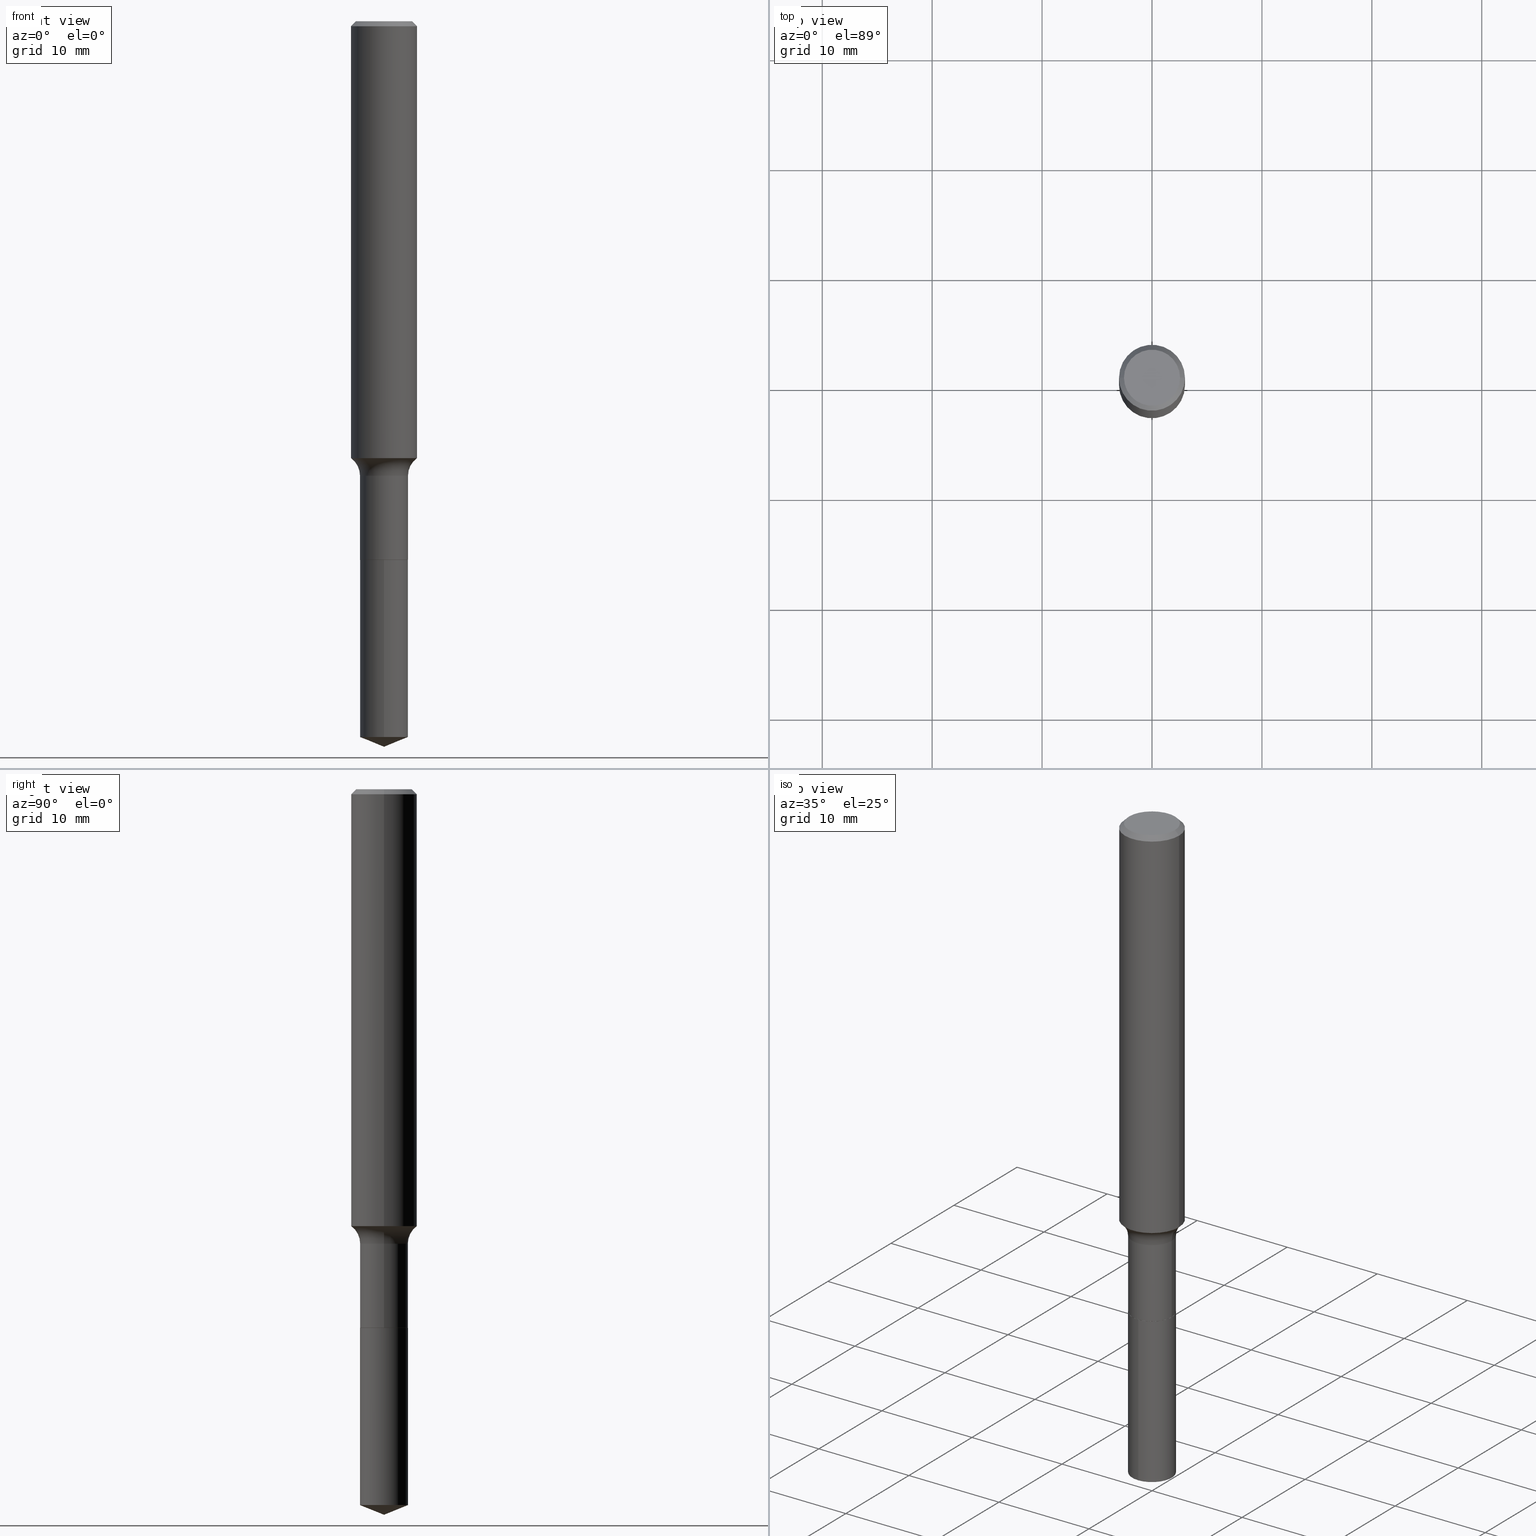
[diagram: canonical four-view strip — front | top / right | iso, engineering-drawing reading convention]
A machine part, canonical four-view strip (front | top / right | iso — engineering-drawing reading convention). The complete STEP part file that produces these views, byte-faithful:
ISO-10303-21;
HEADER;
FILE_DESCRIPTION (( 'STEP AP203' ),
    '1' );
FILE_NAME ('56805.STEP',
    '2024-04-19T13:59:39',
    ( '' ),
    ( '' ),
    'SwSTEP 2.0',
    'SolidWorks 2023',
    '' );
FILE_SCHEMA (( 'CONFIG_CONTROL_DESIGN' ));
ENDSEC;

DATA;
#1 = DIRECTION ( 'NONE',  ( -6.982962677686266711E-15, -1.000000000000000000, 6.356830700789444137E-15 ) ) ;
#2 = DIRECTION ( 'NONE',  ( 1.000000000000000000, -6.982962677686266711E-15, 0.000000000000000000 ) ) ;
#3 = CARTESIAN_POINT ( 'NONE',  ( -8.992195157677283514E-28, 1.283905539975511333E-13, 36.77167874015748339 ) ) ;
#4 = CARTESIAN_POINT ( 'NONE',  ( -0.1180999999999999966, 7.628363003171413738E-16, -0.01771500000000010913 ) ) ;
#5 = DIRECTION ( 'NONE',  ( 1.000000000000000000, -6.982962677686266711E-15, 4.879445411049954809E-29 ) ) ;
#6 = CONICAL_SURFACE ( 'NONE', #223, 0.08544999999999998430, 0.7853981633975507526 ) ;
#7 = LINE ( 'NONE', #115, #301 ) ;
#8 = EDGE_CURVE ( 'NONE', #106, #251, #409, .T. ) ;
#9 = DIRECTION ( 'NONE',  ( -0.7071067811865459074, 2.468850131082239706E-15, -0.7071067811865492381 ) ) ;
#10 = SECURITY_CLASSIFICATION_LEVEL ( 'unclassified' ) ;
#11 = CARTESIAN_POINT ( 'NONE',  ( 0.08594999999999998475, -7.333856552240024427E-15, -1.928600000000000092 ) ) ;
#12 = EDGE_CURVE ( 'NONE', #291, #56, #128, .T. ) ;
#13 = PERSON_AND_ORGANIZATION_ROLE ( 'classification_officer' ) ;
#14 = CARTESIAN_POINT ( 'NONE',  ( 4.717553874011746679E-29, -6.735416650762311704E-15, -1.929099999999999815 ) ) ;
#15 = ORIENTED_EDGE ( 'NONE', *, *, #261, .F. ) ;
#16 = DIMENSIONAL_EXPONENTS ( 1.000000000000000000, 0.000000000000000000, 0.000000000000000000, 0.000000000000000000, 0.000000000000000000, 0.000000000000000000, 0.000000000000000000 ) ;
#17 = EDGE_LOOP ( 'NONE', ( #358, #26, #220, #400 ) ) ;
#18 = ORIENTED_EDGE ( 'NONE', *, *, #471, .F. ) ;
#19 = EDGE_CURVE ( 'NONE', #136, #291, #482, .T. ) ;
#20 = AXIS2_PLACEMENT_3D ( 'NONE', #428, #204, #166 ) ;
#21 = APPROVAL_ROLE ( '' ) ;
#22 = EDGE_LOOP ( 'NONE', ( #427, #18, #288, #167 ) ) ;
#23 = PERSON_AND_ORGANIZATION_ROLE ( 'creator' ) ;
#24 = DIRECTION ( 'NONE',  ( 6.588037525764799179E-15, 0.9271838545667900888, 0.3746065934159054645 ) ) ;
#25 = EDGE_CURVE ( 'NONE', #472, #336, #443, .T. ) ;
#26 = ORIENTED_EDGE ( 'NONE', *, *, #221, .T. ) ;
#27 = DIRECTION ( 'NONE',  ( -6.474490251793184940E-15, -0.9271838545667873133, 0.3746065934159118482 ) ) ;
#28 = CIRCLE ( 'NONE', #20, 0.08594999999999998475 ) ;
#29 = CC_DESIGN_APPROVAL ( #164, ( #469 ) ) ;
#30 = VERTEX_POINT ( 'NONE', #181 ) ;
#31 =( LENGTH_UNIT ( ) NAMED_UNIT ( * ) SI_UNIT ( $, .METRE. ) );
#32 = CYLINDRICAL_SURFACE ( 'NONE', #325, 0.1181000000000000799 ) ;
#33 = FACE_OUTER_BOUND ( 'NONE', #266, .T. ) ;
#34 = DIRECTION ( 'NONE',  ( -6.982962677686266711E-15, -1.000000000000000000, 3.178415350394722068E-15 ) ) ;
#35 = DIRECTION ( 'NONE',  ( -2.445468806185136597E-29, 3.491481338843145583E-15, 1.000000000000000000 ) ) ;
#36 = AXIS2_PLACEMENT_3D ( 'NONE', #374, #411, #34 ) ;
#37 = AXIS2_PLACEMENT_3D ( 'NONE', #339, #224, #344 ) ;
#38 = CARTESIAN_POINT ( 'NONE',  ( 4.332147990156996744E-31, -6.185159191760670395E-17, -0.01771500000000010913 ) ) ;
#39 = CARTESIAN_POINT ( 'NONE',  ( 4.717553874011746679E-29, -6.735416650762311704E-15, -1.929099999999999815 ) ) ;
#40 = DIRECTION ( 'NONE',  ( -2.445468806185136597E-29, 3.491481338843145583E-15, 1.000000000000000000 ) ) ;
#41 = EDGE_CURVE ( 'NONE', #106, #300, #158, .T. ) ;
#42 = CARTESIAN_POINT ( 'NONE',  ( 0.1003850000000000159, -7.803837484803599345E-16, -3.975387207051662201E-17 ) ) ;
#43 = CONICAL_SURFACE ( 'NONE', #112, 0.08544999999999998430, 0.7853981633975507526 ) ;
#44 = CARTESIAN_POINT ( 'NONE',  ( -0.1181000000000000799, 8.391509709326788873E-16, -5.809262341591047988E-30 ) ) ;
#45 = PERSON_AND_ORGANIZATION ( #219, #51 ) ;
#46 = CARTESIAN_POINT ( 'NONE',  ( -6.001856421470872890E-16, -0.08595000000000671547, -1.929099999999999593 ) ) ;
#47 = EDGE_CURVE ( 'NONE', #173, #322, #481, .T. ) ;
#48 = PERSON_AND_ORGANIZATION ( #219, #51 ) ;
#49 = CARTESIAN_POINT ( 'NONE',  ( 0.08544999999999998430, -7.332110811570602134E-15, -1.929099999999999815 ) ) ;
#50 = ORIENTED_EDGE ( 'NONE', *, *, #163, .T. ) ;
#51 = ORGANIZATION ( 'UNSPECIFIED', 'UNSPECIFIED', '' ) ;
#52 = ORIENTED_EDGE ( 'NONE', *, *, #295, .F. ) ;
#53 = CC_DESIGN_SECURITY_CLASSIFICATION ( #469, ( #210 ) ) ;
#54 = EDGE_LOOP ( 'NONE', ( #282, #486, #123, #52 ) ) ;
#55 = ADVANCED_FACE ( 'NONE', ( #100 ), #43, .T. ) ;
#56 = VERTEX_POINT ( 'NONE', #225 ) ;
#57 = DATE_AND_TIME ( #79, #476 ) ;
#58 = ORIENTED_EDGE ( 'NONE', *, *, #281, .F. ) ;
#59 = AXIS2_PLACEMENT_3D ( 'NONE', #211, #277, #426 ) ;
#60 = APPROVAL_ROLE ( '' ) ;
#61 = DIRECTION ( 'NONE',  ( 1.000000000000000000, -6.982962677686268288E-15, 0.000000000000000000 ) ) ;
#62 = ADVANCED_FACE ( 'NONE', ( #373 ), #32, .T. ) ;
#63 = APPLICATION_CONTEXT ( 'configuration controlled 3d designs of mechanical parts and assemblies' ) ;
#64 = VERTEX_POINT ( 'NONE', #415 ) ;
#65 = ORIENTED_EDGE ( 'NONE', *, *, #152, .F. ) ;
#66 = CIRCLE ( 'NONE', #422, 0.1003850000000000159 ) ;
#67 = DIRECTION ( 'NONE',  ( 0.7071067811865459074, -7.319954787623251312E-15, -0.7071067811865492381 ) ) ;
#68 = ADVANCED_FACE ( 'NONE', ( #268 ), #161, .T. ) ;
#69 = CARTESIAN_POINT ( 'NONE',  ( 0.1639499999999999291, -6.827940906241650604E-15, -1.627699999999999703 ) ) ;
#70 = DIRECTION ( 'NONE',  ( -2.445468806185136597E-29, 3.491481338843145583E-15, 1.000000000000000000 ) ) ;
#71 = DIRECTION ( 'NONE',  ( -6.982962677686266711E-15, -1.000000000000000000, 3.178415350394722068E-15 ) ) ;
#72 = DIRECTION ( 'NONE',  ( 1.000000000000000000, -6.982962677686264344E-15, 4.883557194083111780E-29 ) ) ;
#73 = CIRCLE ( 'NONE', #264, 0.08544999999999998430 ) ;
#74 = DIRECTION ( 'NONE',  ( -6.982962677686266711E-15, -1.000000000000000000, 3.178415350394722068E-15 ) ) ;
#75 = FACE_OUTER_BOUND ( 'NONE', #442, .T. ) ;
#76 = EDGE_CURVE ( 'NONE', #284, #56, #421, .T. ) ;
#77 = CARTESIAN_POINT ( 'NONE',  ( 3.826177248422579453E-29, -5.462767068705062690E-15, -1.564598672755638020 ) ) ;
#78 = FACE_OUTER_BOUND ( 'NONE', #176, .T. ) ;
#79 = CALENDAR_DATE ( 2024, 19, 4 ) ;
#80 = DIRECTION ( 'NONE',  ( 7.105427357601001859E-15, 1.000000000000000000, -3.491481338843145583E-15 ) ) ;
#81 = APPROVAL_STATUS ( 'not_yet_approved' ) ;
#82 = DIRECTION ( 'NONE',  ( -2.445468806185136877E-29, 3.491481338843145188E-15, 1.000000000000000000 ) ) ;
#83 = COORDINATED_UNIVERSAL_TIME_OFFSET ( 5, 0, .BEHIND. ) ;
#84 = DIRECTION ( 'NONE',  ( 1.000000000000000000, -6.982962677686266711E-15, 0.000000000000000000 ) ) ;
#85 = ORIENTED_EDGE ( 'NONE', *, *, #25, .F. ) ;
#86 = LINE ( 'NONE', #46, #169 ) ;
#87 = APPLICATION_CONTEXT ( 'configuration controlled 3d designs of mechanical parts and assemblies' ) ;
#88 = EDGE_LOOP ( 'NONE', ( #480, #321, #395, #327 ) ) ;
#89 = AXIS2_PLACEMENT_3D ( 'NONE', #265, #457, #74 ) ;
#90 = APPROVAL_PERSON_ORGANIZATION ( #92, #164, #21 ) ;
#91 = EDGE_CURVE ( 'NONE', #247, #245, #431, .T. ) ;
#92 = PERSON_AND_ORGANIZATION ( #219, #51 ) ;
#93 = EDGE_LOOP ( 'NONE', ( #85, #178, #438 ) ) ;
#94 = FACE_OUTER_BOUND ( 'NONE', #179, .T. ) ;
#95 = PERSON_AND_ORGANIZATION ( #219, #51 ) ;
#96 = VECTOR ( 'NONE', #82, 39.37007874015748143 ) ;
#97 = ADVANCED_FACE ( 'NONE', ( #75 ), #215, .T. ) ;
#98 = EDGE_LOOP ( 'NONE', ( #207, #468, #15 ) ) ;
#99 = CIRCLE ( 'NONE', #392, 0.1180999999999999966 ) ;
#100 = FACE_OUTER_BOUND ( 'NONE', #54, .T. ) ;
#101 = ORIENTED_EDGE ( 'NONE', *, *, #261, .T. ) ;
#102 = CARTESIAN_POINT ( 'NONE',  ( 4.717553874011746679E-29, -6.735416650762311704E-15, -1.929099999999999815 ) ) ;
#103 = AXIS2_PLACEMENT_3D ( 'NONE', #303, #305, #71 ) ;
#104 = CC_DESIGN_PERSON_AND_ORGANIZATION_ASSIGNMENT ( #45, #23, ( #357 ) ) ;
#105 = FACE_OUTER_BOUND ( 'NONE', #188, .T. ) ;
#106 = VERTEX_POINT ( 'NONE', #42 ) ;
#107 = FACE_OUTER_BOUND ( 'NONE', #22, .T. ) ;
#108 = DIRECTION ( 'NONE',  ( 1.000000000000000000, -6.982962677686261977E-15, 0.000000000000000000 ) ) ;
#109 = DIRECTION ( 'NONE',  ( -2.445416049279205825E-29, 3.491556889735175103E-15, 1.000000000000000000 ) ) ;
#110 = CARTESIAN_POINT ( 'NONE',  ( 4.717553874011746679E-29, -6.735416650762311704E-15, -1.929099999999999815 ) ) ;
#111 = ADVANCED_FACE ( 'NONE', ( #195 ), #197, .F. ) ;
#112 = AXIS2_PLACEMENT_3D ( 'NONE', #102, #263, #488 ) ;
#113 = AXIS2_PLACEMENT_3D ( 'NONE', #238, #170, #131 ) ;
#114 = DIRECTION ( 'NONE',  ( -2.445468806185136597E-29, 3.491481338843145583E-15, 1.000000000000000000 ) ) ;
#115 = CARTESIAN_POINT ( 'NONE',  ( 6.107114813858531358E-16, 0.08594999999999326790, -1.929100000000000259 ) ) ;
#116 = DIRECTION ( 'NONE',  ( -2.445468806185136597E-29, 3.491481338843145583E-15, 1.000000000000000000 ) ) ;
#117 = DIRECTION ( 'NONE',  ( -1.000000000000000000, 6.982962677686265922E-15, -4.876176775795935793E-29 ) ) ;
#118 =( CONVERSION_BASED_UNIT ( 'INCH', #465 ) LENGTH_UNIT ( ) NAMED_UNIT ( #16 ) );
#119 = DIRECTION ( 'NONE',  ( -6.982962677686265922E-15, -1.000000000000000000, 3.498761904101799553E-15 ) ) ;
#120 = VECTOR ( 'NONE', #142, 39.37007874015748143 ) ;
#121 = CALENDAR_DATE ( 2024, 19, 4 ) ;
#122 = DIRECTION ( 'NONE',  ( -2.445468806185136597E-29, 3.491481338843145583E-15, 1.000000000000000000 ) ) ;
#123 = ORIENTED_EDGE ( 'NONE', *, *, #143, .F. ) ;
#124 = CARTESIAN_POINT ( 'NONE',  ( 0.1181000000000002048, -6.287454960939812530E-15, -1.564598672755638020 ) ) ;
#125 = ORIENTED_EDGE ( 'NONE', *, *, #143, .T. ) ;
#126 = EDGE_LOOP ( 'NONE', ( #320, #407, #293, #390 ) ) ;
#127 = EDGE_CURVE ( 'NONE', #300, #64, #230, .T. ) ;
#128 = CIRCLE ( 'NONE', #307, 0.07800000000000002764 ) ;
#129 = CIRCLE ( 'NONE', #405, 0.08544999999999998430 ) ;
#130 = ORIENTED_EDGE ( 'NONE', *, *, #246, .T. ) ;
#131 = DIRECTION ( 'NONE',  ( 1.000000000000000000, 0.000000000000000000, 0.000000000000000000 ) ) ;
#132 = ORIENTED_EDGE ( 'NONE', *, *, #41, .T. ) ;
#133 = LINE ( 'NONE', #436, #240 ) ;
#134 = CALENDAR_DATE ( 2024, 19, 4 ) ;
#135 = MANIFOLD_SOLID_BREP ( 'Body-Move/Copy2[1]', #360 ) ;
#136 = VERTEX_POINT ( 'NONE', #234 ) ;
#137 = CIRCLE ( 'NONE', #413, 0.1180999999999999966 ) ;
#138 = VERTEX_POINT ( 'NONE', #492 ) ;
#139 = AXIS2_PLACEMENT_3D ( 'NONE', #274, #80, #239 ) ;
#140 = APPROVAL_PERSON_ORGANIZATION ( #399, #323, #316 ) ;
#141 = ORIENTED_EDGE ( 'NONE', *, *, #221, .F. ) ;
#142 = DIRECTION ( 'NONE',  ( -2.445468806185136877E-29, 3.491481338843145188E-15, 1.000000000000000000 ) ) ;
#143 = EDGE_CURVE ( 'NONE', #284, #173, #375, .T. ) ;
#144 = UNCERTAINTY_MEASURE_WITH_UNIT (LENGTH_MEASURE( 1.000000000000000082E-05 ), #118, 'distance_accuracy_value', 'NONE');
#145 = CC_DESIGN_DATE_AND_TIME_ASSIGNMENT ( #57, #214, ( #357 ) ) ;
#146 = CYLINDRICAL_SURFACE ( 'NONE', #200, 0.1181000000000000799 ) ;
#147 = ORIENTED_EDGE ( 'NONE', *, *, #127, .F. ) ;
#148 = AXIS2_PLACEMENT_3D ( 'NONE', #346, #35, #72 ) ;
#149 = VECTOR ( 'NONE', #283, 39.37007874015748143 ) ;
#150 = DIRECTION ( 'NONE',  ( -2.445468806185136597E-29, 3.491481338843145583E-15, 1.000000000000000000 ) ) ;
#151 = DIRECTION ( 'NONE',  ( -2.445468806185136597E-29, 3.491481338843145583E-15, 1.000000000000000000 ) ) ;
#152 = EDGE_CURVE ( 'NONE', #64, #251, #137, .T. ) ;
#153 = LINE ( 'NONE', #408, #177 ) ;
#154 = DIRECTION ( 'NONE',  ( 1.000000000000000000, -6.982962677686264344E-15, 0.000000000000000000 ) ) ;
#155 = CYLINDRICAL_SURFACE ( 'NONE', #59, 0.08594999999999997087 ) ;
#156 = DIRECTION ( 'NONE',  ( -2.445416049279205825E-29, 3.491556889735175103E-15, 1.000000000000000000 ) ) ;
#157 = CARTESIAN_POINT ( 'NONE',  ( -0.08594999999999998475, -5.597666061278133758E-15, -1.928600000000000092 ) ) ;
#158 = CIRCLE ( 'NONE', #199, 0.1003850000000000159 ) ;
#159 = CONICAL_SURFACE ( 'NONE', #475, 0.1180999999999999966, 0.7853981633974459475 ) ;
#160 = DIRECTION ( 'NONE',  ( -2.445468806185136597E-29, 3.491481338843145583E-15, 1.000000000000000000 ) ) ;
#161 = CYLINDRICAL_SURFACE ( 'NONE', #103, 0.08594999999999998475 ) ;
#162 = DIRECTION ( 'NONE',  ( -2.445468806185136597E-29, 3.491481338843145583E-15, 1.000000000000000000 ) ) ;
#163 = EDGE_CURVE ( 'NONE', #322, #56, #208, .T. ) ;
#164 = APPROVAL ( #252, 'UNSPECIFIED' ) ;
#165 =( NAMED_UNIT ( * ) SI_UNIT ( $, .STERADIAN. ) SOLID_ANGLE_UNIT ( ) );
#166 = DIRECTION ( 'NONE',  ( -6.982962677686266711E-15, -1.000000000000000000, 6.356830700789444137E-15 ) ) ;
#167 = ORIENTED_EDGE ( 'NONE', *, *, #330, .T. ) ;
#168 = AXIS2_PLACEMENT_3D ( 'NONE', #377, #150, #108 ) ;
#169 = VECTOR ( 'NONE', #242, 39.37007874015748143 ) ;
#170 = DIRECTION ( 'NONE',  ( 0.000000000000000000, 0.000000000000000000, 1.000000000000000000 ) ) ;
#171 = LOCAL_TIME ( 9, 59, 39.00000000000000000, #83 ) ;
#172 = CARTESIAN_POINT ( 'NONE',  ( 0.1180999999999999966, -8.865394841523547570E-16, -0.01771500000000010913 ) ) ;
#173 = VERTEX_POINT ( 'NONE', #157 ) ;
#174 = EDGE_CURVE ( 'NONE', #173, #284, #249, .T. ) ;
#175 = ORIENTED_EDGE ( 'NONE', *, *, #290, .T. ) ;
#176 = EDGE_LOOP ( 'NONE', ( #183, #132 ) ) ;
#177 = VECTOR ( 'NONE', #299, 39.37007874015748143 ) ;
#178 = ORIENTED_EDGE ( 'NONE', *, *, #337, .T. ) ;
#179 = EDGE_LOOP ( 'NONE', ( #254, #474 ) ) ;
#180 = PERSON_AND_ORGANIZATION_ROLE ( 'creator' ) ;
#181 = CARTESIAN_POINT ( 'NONE',  ( 0.08544999999999998430, -7.332110811570602134E-15, -1.929099999999999815 ) ) ;
#182 = CARTESIAN_POINT ( 'NONE',  ( 4.717553874011746679E-29, -6.735416650762311704E-15, -1.929099999999999815 ) ) ;
#183 = ORIENTED_EDGE ( 'NONE', *, *, #372, .T. ) ;
#184 = AXIS2_PLACEMENT_3D ( 'NONE', #459, #347, #455 ) ;
#185 = PRODUCT ( '56805', '56805', '', ( #353 ) ) ;
#186 = EDGE_CURVE ( 'NONE', #245, #247, #385, .T. ) ;
#187 = CARTESIAN_POINT ( 'NONE',  ( -0.08594999999999997087, 6.107114813858059028E-16, -4.227824710074090189E-30 ) ) ;
#188 = EDGE_LOOP ( 'NONE', ( #401, #359, #50, #228 ) ) ;
#189 = DIRECTION ( 'NONE',  ( -2.445468806185136597E-29, 3.491481338843145583E-15, 1.000000000000000000 ) ) ;
#190 = FACE_OUTER_BOUND ( 'NONE', #126, .T. ) ;
#191 = DIRECTION ( 'NONE',  ( 2.445468806185136597E-29, -3.491481338843145583E-15, -1.000000000000000000 ) ) ;
#192 = AXIS2_PLACEMENT_3D ( 'NONE', #182, #334, #275 ) ;
#193 = LOCAL_TIME ( 9, 59, 39.00000000000000000, #477 ) ;
#194 = EDGE_CURVE ( 'NONE', #336, #245, #7, .T. ) ;
#195 = FACE_OUTER_BOUND ( 'NONE', #296, .T. ) ;
#196 = CARTESIAN_POINT ( 'NONE',  ( 9.721685407353558503E-46, -1.387999024809845952E-31, -3.975387207052179891E-17 ) ) ;
#197 = PLANE ( 'NONE',  #447 ) ;
#198 = CARTESIAN_POINT ( 'NONE',  ( 3.980489575827546304E-29, -5.683084175234986754E-15, -1.627699999999999703 ) ) ;
#199 = AXIS2_PLACEMENT_3D ( 'NONE', #450, #331, #222 ) ;
#200 = AXIS2_PLACEMENT_3D ( 'NONE', #310, #70, #271 ) ;
#201 = DIRECTION ( 'NONE',  ( -2.445468806185136877E-29, 3.491481338843145188E-15, 1.000000000000000000 ) ) ;
#202 = ADVANCED_FACE ( 'NONE', ( #78 ), #311, .F. ) ;
#203 = COORDINATED_UNIVERSAL_TIME_OFFSET ( 5, 0, .BEHIND. ) ;
#204 = DIRECTION ( 'NONE',  ( -2.445416049279205825E-29, 3.491556889735175103E-15, 1.000000000000000000 ) ) ;
#205 = PERSON_AND_ORGANIZATION ( #219, #51 ) ;
#206 = CARTESIAN_POINT ( 'NONE',  ( 6.107114813858688144E-16, 0.08594999999999326790, -1.929100000000000259 ) ) ;
#207 = ORIENTED_EDGE ( 'NONE', *, *, #337, .F. ) ;
#208 = CIRCLE ( 'NONE', #467, 0.08594999999999995699 ) ;
#209 = EDGE_CURVE ( 'NONE', #136, #322, #362, .T. ) ;
#210 = PRODUCT_DEFINITION_FORMATION_WITH_SPECIFIED_SOURCE ( 'ANY', '', #185, .NOT_KNOWN. ) ;
#211 = CARTESIAN_POINT ( 'NONE',  ( 0.000000000000000000, 0.000000000000000000, 0.000000000000000000 ) ) ;
#212 = ORIENTED_EDGE ( 'NONE', *, *, #47, .F. ) ;
#213 = ORIENTED_EDGE ( 'NONE', *, *, #485, .F. ) ;
#214 = DATE_TIME_ROLE ( 'creation_date' ) ;
#215 = CONICAL_SURFACE ( 'NONE', #489, 0.1180999999999999966, 0.7853981633974459475 ) ;
#216 = APPROVAL_PERSON_ORGANIZATION ( #95, #456, #60 ) ;
#217 = ORIENTED_EDGE ( 'NONE', *, *, #194, .T. ) ;
#218 = ORIENTED_EDGE ( 'NONE', *, *, #8, .T. ) ;
#219 = PERSON ( 'UNSPECIFIED', 'UNSPECIFIED', 'UNSPECIFIED', ('UNSPECIFIED'), ('UNSPECIFIED'), ('UNSPECIFIED') ) ;
#220 = ORIENTED_EDGE ( 'NONE', *, *, #290, .F. ) ;
#221 = EDGE_CURVE ( 'NONE', #136, #64, #384, .T. ) ;
#222 = DIRECTION ( 'NONE',  ( 1.000000000000000000, -6.982962677686266711E-15, 4.879445411049954809E-29 ) ) ;
#223 = AXIS2_PLACEMENT_3D ( 'NONE', #39, #160, #491 ) ;
#224 = DIRECTION ( 'NONE',  ( -2.445468806185136597E-29, 3.491481338843145583E-15, 1.000000000000000000 ) ) ;
#225 = CARTESIAN_POINT ( 'NONE',  ( 0.08594999999999995699, -6.283269817382120980E-15, -1.627699999999999703 ) ) ;
#226 = CC_DESIGN_DATE_AND_TIME_ASSIGNMENT ( #434, #361, ( #469 ) ) ;
#227 = PRODUCT_DEFINITION_SHAPE ( 'NONE', 'NONE',  #357 ) ;
#228 = ORIENTED_EDGE ( 'NONE', *, *, #12, .F. ) ;
#229 = CARTESIAN_POINT ( 'NONE',  ( 4.717553874011746679E-29, -6.735416650762311704E-15, -1.929099999999999815 ) ) ;
#230 = LINE ( 'NONE', #4, #278 ) ;
#231 = VECTOR ( 'NONE', #67, 39.37007874015748143 ) ;
#232 = TOROIDAL_SURFACE ( 'NONE', #148, 0.1639499999999999291, 0.07800000000000002764 ) ;
#233 = CYLINDRICAL_SURFACE ( 'NONE', #37, 0.08594999999999997087 ) ;
#234 = CARTESIAN_POINT ( 'NONE',  ( -0.1181000000000002048, -4.623616097772383704E-15, -1.564598672755638020 ) ) ;
#235 = DIRECTION ( 'NONE',  ( 1.000000000000000000, -6.982962677686266711E-15, 4.876176775795936353E-29 ) ) ;
#236 = DIRECTION ( 'NONE',  ( 0.7071067811866199593, -2.468850131083015945E-15, 0.7071067811864750752 ) ) ;
#237 = ADVANCED_FACE ( 'NONE', ( #350 ), #458, .T. ) ;
#238 = CARTESIAN_POINT ( 'NONE',  ( 0.000000000000000000, 0.000000000000000000, 0.000000000000000000 ) ) ;
#239 = DIRECTION ( 'NONE',  ( -1.000000000000000000, 7.105427357601001859E-15, 0.000000000000000000 ) ) ;
#240 = VECTOR ( 'NONE', #27, 39.37007874015748854 ) ;
#241 = CALENDAR_DATE ( 2024, 19, 4 ) ;
#242 = DIRECTION ( 'NONE',  ( -2.445416049279205825E-29, 3.491556889735175498E-15, 1.000000000000000000 ) ) ;
#243 = DATE_AND_TIME ( #241, #171 ) ;
#244 = LINE ( 'NONE', #49, #294 ) ;
#245 = VERTEX_POINT ( 'NONE', #206 ) ;
#246 = EDGE_CURVE ( 'NONE', #478, #247, #86, .T. ) ;
#247 = VERTEX_POINT ( 'NONE', #352 ) ;
#248 = CC_DESIGN_PERSON_AND_ORGANIZATION_ASSIGNMENT ( #351, #388, ( #210 ) ) ;
#249 = CIRCLE ( 'NONE', #184, 0.08594999999999998475 ) ;
#250 = CYLINDRICAL_SURFACE ( 'NONE', #89, 0.08594999999999998475 ) ;
#251 = VERTEX_POINT ( 'NONE', #172 ) ;
#252 = APPROVAL_STATUS ( 'not_yet_approved' ) ;
#253 = EDGE_CURVE ( 'NONE', #138, #173, #354, .T. ) ;
#254 = ORIENTED_EDGE ( 'NONE', *, *, #91, .T. ) ;
#255 = PLANE ( 'NONE',  #192 ) ;
#256 = SHAPE_DEFINITION_REPRESENTATION ( #227, #440 ) ;
#257 = TOROIDAL_SURFACE ( 'NONE', #318, 0.1639499999999999291, 0.07800000000000002764 ) ;
#258 = DIRECTION ( 'NONE',  ( -6.982962677686266711E-15, -1.000000000000000000, 3.491481338843145583E-15 ) ) ;
#259 = DIRECTION ( 'NONE',  ( 1.000000000000000000, -6.982962677686264344E-15, 0.000000000000000000 ) ) ;
#260 = EDGE_LOOP ( 'NONE', ( #141, #435, #367, #65 ) ) ;
#261 = EDGE_CURVE ( 'NONE', #478, #336, #28, .T. ) ;
#262 = ORIENTED_EDGE ( 'NONE', *, *, #163, .F. ) ;
#263 = DIRECTION ( 'NONE',  ( -2.445468806185136597E-29, 3.491481338843145583E-15, 1.000000000000000000 ) ) ;
#264 = AXIS2_PLACEMENT_3D ( 'NONE', #229, #116, #371 ) ;
#265 = CARTESIAN_POINT ( 'NONE',  ( 4.717553874011746679E-29, -6.735416650762311704E-15, -1.929099999999999815 ) ) ;
#266 = EDGE_LOOP ( 'NONE', ( #212, #333, #285, #262 ) ) ;
#267 = FACE_OUTER_BOUND ( 'NONE', #98, .T. ) ;
#268 = FACE_OUTER_BOUND ( 'NONE', #394, .T. ) ;
#269 = DIRECTION ( 'NONE',  ( -6.982962677686266711E-15, -1.000000000000000000, 3.178415350394722068E-15 ) ) ;
#270 = LOCAL_TIME ( 9, 59, 39.00000000000000000, #328 ) ;
#271 = DIRECTION ( 'NONE',  ( 1.000000000000000000, -6.982962677686266711E-15, 4.876176775795936353E-29 ) ) ;
#272 = DIRECTION ( 'NONE',  ( -2.445416049279205825E-29, 3.491556889735175498E-15, 1.000000000000000000 ) ) ;
#273 = ADVANCED_FACE ( 'NONE', ( #280 ), #159, .T. ) ;
#274 = CARTESIAN_POINT ( 'NONE',  ( -0.1639499999999999291, -4.518149359956303792E-15, -1.627699999999999703 ) ) ;
#275 = DIRECTION ( 'NONE',  ( 6.982962677686265922E-15, 1.000000000000000000, -3.491556889735175498E-15 ) ) ;
#276 = DIRECTION ( 'NONE',  ( -2.445416049279205825E-29, 3.491556889735175103E-15, 1.000000000000000000 ) ) ;
#277 = DIRECTION ( 'NONE',  ( -2.445468806185136597E-29, 3.491481338843145583E-15, 1.000000000000000000 ) ) ;
#278 = VECTOR ( 'NONE', #9, 39.37007874015748143 ) ;
#279 = CIRCLE ( 'NONE', #309, 0.08594999999999995699 ) ;
#280 = FACE_OUTER_BOUND ( 'NONE', #88, .T. ) ;
#281 = EDGE_CURVE ( 'NONE', #138, #30, #129, .T. ) ;
#282 = ORIENTED_EDGE ( 'NONE', *, *, #485, .T. ) ;
#283 = DIRECTION ( 'NONE',  ( -0.7071067811866199593, 7.493145998870616062E-15, 0.7071067811864750752 ) ) ;
#284 = VERTEX_POINT ( 'NONE', #11 ) ;
#285 = ORIENTED_EDGE ( 'NONE', *, *, #76, .T. ) ;
#286 = CONICAL_SURFACE ( 'NONE', #441, 97.44436430772920232, 1.186823891356147742 ) ;
#287 = CC_DESIGN_APPROVAL ( #456, ( #210 ) ) ;
#288 = ORIENTED_EDGE ( 'NONE', *, *, #12, .T. ) ;
#289 = CALENDAR_DATE ( 2024, 19, 4 ) ;
#290 = EDGE_CURVE ( 'NONE', #251, #64, #99, .T. ) ;
#291 = VERTEX_POINT ( 'NONE', #124 ) ;
#292 = DATE_AND_TIME ( #134, #270 ) ;
#293 = ORIENTED_EDGE ( 'NONE', *, *, #295, .T. ) ;
#294 = VECTOR ( 'NONE', #236, 39.37007874015748143 ) ;
#295 = EDGE_CURVE ( 'NONE', #30, #284, #244, .T. ) ;
#296 = EDGE_LOOP ( 'NONE', ( #213, #58 ) ) ;
#297 = CARTESIAN_POINT ( 'NONE',  ( 0.1180999999999999966, -8.720764054544245267E-16, -0.01771500000000010913 ) ) ;
#298 = ORIENTED_EDGE ( 'NONE', *, *, #246, .F. ) ;
#299 = DIRECTION ( 'NONE',  ( -2.445468806185136877E-29, 3.491481338843145188E-15, 1.000000000000000000 ) ) ;
#300 = VERTEX_POINT ( 'NONE', #315 ) ;
#301 = VECTOR ( 'NONE', #272, 39.37007874015748143 ) ;
#302 = DIRECTION ( 'NONE',  ( 1.000000000000000000, -6.982962677686264344E-15, 4.883557194083111780E-29 ) ) ;
#303 = CARTESIAN_POINT ( 'NONE',  ( 4.717553874011746679E-29, -6.735416650762311704E-15, -1.929099999999999815 ) ) ;
#304 = FACE_OUTER_BOUND ( 'NONE', #402, .T. ) ;
#305 = DIRECTION ( 'NONE',  ( -2.445416049279205825E-29, 3.491556889735175103E-15, 1.000000000000000000 ) ) ;
#306 = DIRECTION ( 'NONE',  ( -2.438088387897960049E-29, 3.491481338843145188E-15, 1.000000000000000000 ) ) ;
#307 = AXIS2_PLACEMENT_3D ( 'NONE', #69, #258, #61 ) ;
#308 = EDGE_CURVE ( 'NONE', #336, #478, #414, .T. ) ;
#309 = AXIS2_PLACEMENT_3D ( 'NONE', #439, #189, #259 ) ;
#310 = CARTESIAN_POINT ( 'NONE',  ( 0.000000000000000000, 0.000000000000000000, 0.000000000000000000 ) ) ;
#311 = PLANE ( 'NONE',  #490 ) ;
#312 = MANIFOLD_SOLID_BREP ( 'Body-Move/Copy2[2]', #332 ) ;
#313 = APPLICATION_PROTOCOL_DEFINITION ( 'international standard', 'config_control_design', 1994, #87 ) ;
#314 = CARTESIAN_POINT ( 'NONE',  ( -8.992195157677283514E-28, 1.283905539975511333E-13, 36.77167874015748339 ) ) ;
#315 = CARTESIAN_POINT ( 'NONE',  ( -0.1003850000000000159, 7.319105043583386689E-16, -3.975387207052680940E-17 ) ) ;
#316 = APPROVAL_ROLE ( '' ) ;
#317 = DIRECTION ( 'NONE',  ( -1.000000000000000000, 6.982962677686266711E-15, 0.000000000000000000 ) ) ;
#318 = AXIS2_PLACEMENT_3D ( 'NONE', #449, #114, #302 ) ;
#319 = DIRECTION ( 'NONE',  ( 2.445468806185136597E-29, -3.491481338843145583E-15, -1.000000000000000000 ) ) ;
#320 = ORIENTED_EDGE ( 'NONE', *, *, #253, .F. ) ;
#321 = ORIENTED_EDGE ( 'NONE', *, *, #372, .F. ) ;
#322 = VERTEX_POINT ( 'NONE', #453 ) ;
#323 = APPROVAL ( #386, 'UNSPECIFIED' ) ;
#324 = PRODUCT_RELATED_PRODUCT_CATEGORY ( 'detail', '', ( #185 ) ) ;
#325 = AXIS2_PLACEMENT_3D ( 'NONE', #379, #40, #235 ) ;
#326 = PERSON_AND_ORGANIZATION ( #219, #51 ) ;
#327 = ORIENTED_EDGE ( 'NONE', *, *, #152, .T. ) ;
#328 = COORDINATED_UNIVERSAL_TIME_OFFSET ( 5, 0, .BEHIND. ) ;
#329 = DIRECTION ( 'NONE',  ( 1.000000000000000000, -6.982962677686270655E-15, 0.000000000000000000 ) ) ;
#330 = EDGE_CURVE ( 'NONE', #56, #322, #279, .T. ) ;
#331 = DIRECTION ( 'NONE',  ( -2.445468806185136597E-29, 3.491481338843145583E-15, 1.000000000000000000 ) ) ;
#332 = CLOSED_SHELL ( 'NONE', ( #55, #97, #462, #429, #378, #404, #364, #62, #273, #202, #111, #412 ) ) ;
#333 = ORIENTED_EDGE ( 'NONE', *, *, #174, .T. ) ;
#334 = DIRECTION ( 'NONE',  ( 2.445416049279205264E-29, -3.491556889735175498E-15, -1.000000000000000000 ) ) ;
#335 = DIRECTION ( 'NONE',  ( -2.445468806185136597E-29, 3.491481338843145583E-15, 1.000000000000000000 ) ) ;
#336 = VERTEX_POINT ( 'NONE', #479 ) ;
#337 = EDGE_CURVE ( 'NONE', #472, #478, #133, .T. ) ;
#338 = VECTOR ( 'NONE', #24, 39.37007874015748143 ) ;
#339 = CARTESIAN_POINT ( 'NONE',  ( 0.000000000000000000, 0.000000000000000000, 0.000000000000000000 ) ) ;
#340 = DIRECTION ( 'NONE',  ( 1.000000000000000000, -6.982962677686265922E-15, 4.876176775795935793E-29 ) ) ;
#341 = CARTESIAN_POINT ( 'NONE',  ( 6.354169062447086700E-29, -9.072461422287877716E-15, -2.598399999999999821 ) ) ;
#342 = DIRECTION ( 'NONE',  ( -2.445468806185136597E-29, 3.491481338843145583E-15, 1.000000000000000000 ) ) ;
#343 = ADVANCED_FACE ( 'NONE', ( #94 ), #255, .F. ) ;
#344 = DIRECTION ( 'NONE',  ( 1.000000000000000000, -6.982962677686266711E-15, 4.876176775795936353E-29 ) ) ;
#345 = CARTESIAN_POINT ( 'NONE',  ( 4.717553874011746679E-29, -6.735416650762311704E-15, -1.929099999999999815 ) ) ;
#346 = CARTESIAN_POINT ( 'NONE',  ( 3.980489575827546304E-29, -5.683084175234986754E-15, -1.627699999999999703 ) ) ;
#347 = DIRECTION ( 'NONE',  ( -2.445468806185136597E-29, 3.491481338843145583E-15, 1.000000000000000000 ) ) ;
#348 = AXIS2_PLACEMENT_3D ( 'NONE', #110, #276, #269 ) ;
#349 = PERSON_AND_ORGANIZATION_ROLE ( 'design_owner' ) ;
#350 = FACE_OUTER_BOUND ( 'NONE', #93, .T. ) ;
#351 = PERSON_AND_ORGANIZATION ( #219, #51 ) ;
#352 = CARTESIAN_POINT ( 'NONE',  ( -6.001856421470872890E-16, -0.08595000000000671547, -1.929099999999999593 ) ) ;
#353 = MECHANICAL_CONTEXT ( 'NONE', #63, 'mechanical' ) ;
#354 = LINE ( 'NONE', #389, #149 ) ;
#355 = ORIENTED_EDGE ( 'NONE', *, *, #76, .F. ) ;
#356 = FACE_OUTER_BOUND ( 'NONE', #433, .T. ) ;
#357 = PRODUCT_DEFINITION ( 'UNKNOWN', '', #210, #446 ) ;
#358 = ORIENTED_EDGE ( 'NONE', *, *, #471, .T. ) ;
#359 = ORIENTED_EDGE ( 'NONE', *, *, #209, .T. ) ;
#360 = CLOSED_SHELL ( 'NONE', ( #68, #451, #237, #393, #343 ) ) ;
#361 = DATE_TIME_ROLE ( 'classification_date' ) ;
#362 = CIRCLE ( 'NONE', #139, 0.07800000000000002764 ) ;
#363 = ORIENTED_EDGE ( 'NONE', *, *, #47, .T. ) ;
#364 = ADVANCED_FACE ( 'NONE', ( #107 ), #232, .F. ) ;
#365 = DATE_AND_TIME ( #121, #484 ) ;
#366 = CARTESIAN_POINT ( 'NONE',  ( 6.354374394005791819E-29, -9.072169931836252108E-15, -2.598399999999999821 ) ) ;
#367 = ORIENTED_EDGE ( 'NONE', *, *, #420, .T. ) ;
#368 = VECTOR ( 'NONE', #201, 39.37007874015748143 ) ;
#369 = CC_DESIGN_APPROVAL ( #323, ( #357 ) ) ;
#370 = ORIENTED_EDGE ( 'NONE', *, *, #186, .F. ) ;
#371 = DIRECTION ( 'NONE',  ( 1.000000000000000000, -6.982962677686267499E-15, 0.000000000000000000 ) ) ;
#372 = EDGE_CURVE ( 'NONE', #300, #106, #66, .T. ) ;
#373 = FACE_OUTER_BOUND ( 'NONE', #260, .T. ) ;
#374 = CARTESIAN_POINT ( 'NONE',  ( 4.717553874011746679E-29, -6.735416650762311704E-15, -1.929099999999999815 ) ) ;
#375 = CIRCLE ( 'NONE', #168, 0.08594999999999998475 ) ;
#376 = CIRCLE ( 'NONE', #448, 0.1181000000000001632 ) ;
#377 = CARTESIAN_POINT ( 'NONE',  ( 4.716331139608654438E-29, -6.733670910092890989E-15, -1.928600000000000092 ) ) ;
#378 = ADVANCED_FACE ( 'NONE', ( #304 ), #155, .T. ) ;
#379 = CARTESIAN_POINT ( 'NONE',  ( 0.000000000000000000, 0.000000000000000000, 0.000000000000000000 ) ) ;
#380 = CARTESIAN_POINT ( 'NONE',  ( 6.269351185744286902E-29, -8.951067683579122812E-15, -2.563673945889468619 ) ) ;
#381 = CARTESIAN_POINT ( 'NONE',  ( -6.001856421470718076E-16, -0.08595000000000893592, -2.563673945889467731 ) ) ;
#382 = CARTESIAN_POINT ( 'NONE',  ( 4.332147990156996744E-31, -6.185159191760670395E-17, -0.01771500000000010913 ) ) ;
#383 = APPLICATION_PROTOCOL_DEFINITION ( 'international standard', 'config_control_design', 1994, #63 ) ;
#384 = LINE ( 'NONE', #44, #368 ) ;
#385 = CIRCLE ( 'NONE', #348, 0.08594999999999998475 ) ;
#386 = APPROVAL_STATUS ( 'not_yet_approved' ) ;
#387 = CARTESIAN_POINT ( 'NONE',  ( 4.332147990156996744E-31, -6.185159191760670395E-17, -0.01771500000000010913 ) ) ;
#388 = PERSON_AND_ORGANIZATION_ROLE ( 'design_supplier' ) ;
#389 = CARTESIAN_POINT ( 'NONE',  ( -0.08544999999999998430, -6.128257883055305122E-15, -1.929099999999999815 ) ) ;
#390 = ORIENTED_EDGE ( 'NONE', *, *, #174, .F. ) ;
#391 = ORIENTED_EDGE ( 'NONE', *, *, #91, .F. ) ;
#392 = AXIS2_PLACEMENT_3D ( 'NONE', #425, #466, #84 ) ;
#393 = ADVANCED_FACE ( 'NONE', ( #356 ), #250, .T. ) ;
#394 = EDGE_LOOP ( 'NONE', ( #101, #217, #391, #298 ) ) ;
#395 = ORIENTED_EDGE ( 'NONE', *, *, #127, .T. ) ;
#396 = APPROVAL_DATE_TIME ( #243, #456 ) ;
#397 = ORIENTED_EDGE ( 'NONE', *, *, #41, .F. ) ;
#398 = AXIS2_PLACEMENT_3D ( 'NONE', #314, #464, #119 ) ;
#399 = PERSON_AND_ORGANIZATION ( #219, #51 ) ;
#400 = ORIENTED_EDGE ( 'NONE', *, *, #420, .F. ) ;
#401 = ORIENTED_EDGE ( 'NONE', *, *, #19, .F. ) ;
#402 = EDGE_LOOP ( 'NONE', ( #125, #363, #473, #355 ) ) ;
#403 = AXIS2_PLACEMENT_3D ( 'NONE', #487, #335, #329 ) ;
#404 = ADVANCED_FACE ( 'NONE', ( #33 ), #233, .T. ) ;
#405 = AXIS2_PLACEMENT_3D ( 'NONE', #14, #122, #470 ) ;
#406 = CC_DESIGN_PERSON_AND_ORGANIZATION_ASSIGNMENT ( #205, #13, ( #469 ) ) ;
#407 = ORIENTED_EDGE ( 'NONE', *, *, #281, .T. ) ;
#408 = CARTESIAN_POINT ( 'NONE',  ( 0.1181000000000000799, -8.246878922347486570E-16, 5.758764772215004644E-30 ) ) ;
#409 = LINE ( 'NONE', #297, #231 ) ;
#410 = FACE_OUTER_BOUND ( 'NONE', #17, .T. ) ;
#411 = DIRECTION ( 'NONE',  ( -2.445416049279205825E-29, 3.491556889735175103E-15, 1.000000000000000000 ) ) ;
#412 = ADVANCED_FACE ( 'NONE', ( #190 ), #6, .T. ) ;
#413 = AXIS2_PLACEMENT_3D ( 'NONE', #38, #342, #2 ) ;
#414 = CIRCLE ( 'NONE', #423, 0.08594999999999998475 ) ;
#415 = CARTESIAN_POINT ( 'NONE',  ( -0.1180999999999999966, -1.923158359378655458E-15, -0.01771500000000010913 ) ) ;
#416 = DIRECTION ( 'NONE',  ( -2.445468806185136597E-29, 3.491481338843145583E-15, 1.000000000000000000 ) ) ;
#417 = DIRECTION ( 'NONE',  ( -1.000000000000000000, 6.982962677686266711E-15, 0.000000000000000000 ) ) ;
#418 =( NAMED_UNIT ( * ) PLANE_ANGLE_UNIT ( ) SI_UNIT ( $, .RADIAN. ) );
#419 = DIRECTION ( 'NONE',  ( 2.438088387897960049E-29, -3.491481338843145188E-15, -1.000000000000000000 ) ) ;
#420 = EDGE_CURVE ( 'NONE', #291, #251, #153, .T. ) ;
#421 = LINE ( 'NONE', #452, #96 ) ;
#422 = AXIS2_PLACEMENT_3D ( 'NONE', #196, #151, #5 ) ;
#423 = AXIS2_PLACEMENT_3D ( 'NONE', #380, #109, #1 ) ;
#424 = APPROVAL_DATE_TIME ( #365, #323 ) ;
#425 = CARTESIAN_POINT ( 'NONE',  ( 4.332147990156996744E-31, -6.185159191760670395E-17, -0.01771500000000010913 ) ) ;
#426 = DIRECTION ( 'NONE',  ( 1.000000000000000000, -6.982962677686266711E-15, 4.876176775795936353E-29 ) ) ;
#427 = ORIENTED_EDGE ( 'NONE', *, *, #209, .F. ) ;
#428 = CARTESIAN_POINT ( 'NONE',  ( 6.269351185744286902E-29, -8.951067683579122812E-15, -2.563673945889468619 ) ) ;
#429 = ADVANCED_FACE ( 'NONE', ( #105 ), #257, .F. ) ;
#430 = ORIENTED_EDGE ( 'NONE', *, *, #308, .T. ) ;
#431 = CIRCLE ( 'NONE', #36, 0.08594999999999998475 ) ;
#432 = CC_DESIGN_PERSON_AND_ORGANIZATION_ASSIGNMENT ( #326, #180, ( #210 ) ) ;
#433 = EDGE_LOOP ( 'NONE', ( #445, #430, #130, #370 ) ) ;
#434 = DATE_AND_TIME ( #289, #193 ) ;
#435 = ORIENTED_EDGE ( 'NONE', *, *, #19, .T. ) ;
#436 = CARTESIAN_POINT ( 'NONE',  ( 6.354169062447087821E-29, -9.072461422287877716E-15, -2.598399999999999821 ) ) ;
#437 = APPROVAL_DATE_TIME ( #292, #164 ) ;
#438 = ORIENTED_EDGE ( 'NONE', *, *, #308, .F. ) ;
#439 = CARTESIAN_POINT ( 'NONE',  ( 3.980489575827546304E-29, -5.683084175234986754E-15, -1.627699999999999703 ) ) ;
#440 = ADVANCED_BREP_SHAPE_REPRESENTATION ( '56805', ( #135, #312, #113 ), #483 ) ;
#441 = AXIS2_PLACEMENT_3D ( 'NONE', #3, #156, #454 ) ;
#442 = EDGE_LOOP ( 'NONE', ( #397, #218, #175, #147 ) ) ;
#443 = LINE ( 'NONE', #366, #338 ) ;
#444 = CC_DESIGN_PERSON_AND_ORGANIZATION_ASSIGNMENT ( #48, #349, ( #185 ) ) ;
#445 = ORIENTED_EDGE ( 'NONE', *, *, #194, .F. ) ;
#446 = DESIGN_CONTEXT ( 'detailed design', #87, 'design' ) ;
#447 = AXIS2_PLACEMENT_3D ( 'NONE', #345, #306, #340 ) ;
#448 = AXIS2_PLACEMENT_3D ( 'NONE', #77, #416, #460 ) ;
#449 = CARTESIAN_POINT ( 'NONE',  ( 3.980489575827546304E-29, -5.683084175234986754E-15, -1.627699999999999703 ) ) ;
#450 = CARTESIAN_POINT ( 'NONE',  ( 9.721685407353558503E-46, -1.387999024809845952E-31, -3.975387207052179891E-17 ) ) ;
#451 = ADVANCED_FACE ( 'NONE', ( #267 ), #286, .T. ) ;
#452 = CARTESIAN_POINT ( 'NONE',  ( 0.08594999999999997087, -6.001856421471344234E-16, 4.191073938796605839E-30 ) ) ;
#453 = CARTESIAN_POINT ( 'NONE',  ( -0.08594999999999995699, -5.597666061278133758E-15, -1.627699999999999703 ) ) ;
#454 = DIRECTION ( 'NONE',  ( -6.982962677686265922E-15, -1.000000000000000000, 3.498761904101799553E-15 ) ) ;
#455 = DIRECTION ( 'NONE',  ( 1.000000000000000000, -6.982962677686261977E-15, 0.000000000000000000 ) ) ;
#456 = APPROVAL ( #81, 'UNSPECIFIED' ) ;
#457 = DIRECTION ( 'NONE',  ( -2.445416049279205825E-29, 3.491556889735175103E-15, 1.000000000000000000 ) ) ;
#458 = CONICAL_SURFACE ( 'NONE', #398, 97.44436430772920232, 1.186823891356147742 ) ;
#459 = CARTESIAN_POINT ( 'NONE',  ( 4.716331139608654438E-29, -6.733670910092890989E-15, -1.928600000000000092 ) ) ;
#460 = DIRECTION ( 'NONE',  ( 1.000000000000000000, -6.982962677686270655E-15, 0.000000000000000000 ) ) ;
#461 = CARTESIAN_POINT ( 'NONE',  ( 4.860842703676779252E-46, -6.939995124049229759E-32, -1.987693603526089945E-17 ) ) ;
#462 = ADVANCED_FACE ( 'NONE', ( #410 ), #146, .T. ) ;
#463 = COORDINATED_UNIVERSAL_TIME_OFFSET ( 5, 0, .BEHIND. ) ;
#464 = DIRECTION ( 'NONE',  ( -2.445416049279205825E-29, 3.491556889735175103E-15, 1.000000000000000000 ) ) ;
#465 = LENGTH_MEASURE_WITH_UNIT ( LENGTH_MEASURE( 0.02539999999999999897 ), #31 );
#466 = DIRECTION ( 'NONE',  ( -2.445468806185136597E-29, 3.491481338843145583E-15, 1.000000000000000000 ) ) ;
#467 = AXIS2_PLACEMENT_3D ( 'NONE', #198, #162, #154 ) ;
#468 = ORIENTED_EDGE ( 'NONE', *, *, #25, .T. ) ;
#469 = SECURITY_CLASSIFICATION ( '', '', #10 ) ;
#470 = DIRECTION ( 'NONE',  ( 1.000000000000000000, -6.982962677686267499E-15, 0.000000000000000000 ) ) ;
#471 = EDGE_CURVE ( 'NONE', #291, #136, #376, .T. ) ;
#472 = VERTEX_POINT ( 'NONE', #341 ) ;
#473 = ORIENTED_EDGE ( 'NONE', *, *, #330, .F. ) ;
#474 = ORIENTED_EDGE ( 'NONE', *, *, #186, .T. ) ;
#475 = AXIS2_PLACEMENT_3D ( 'NONE', #387, #319, #317 ) ;
#476 = LOCAL_TIME ( 9, 59, 39.00000000000000000, #203 ) ;
#477 = COORDINATED_UNIVERSAL_TIME_OFFSET ( 5, 0, .BEHIND. ) ;
#478 = VERTEX_POINT ( 'NONE', #381 ) ;
#479 = CARTESIAN_POINT ( 'NONE',  ( 6.107114813858686172E-16, 0.08594999999999104745, -2.563673945889469064 ) ) ;
#480 = ORIENTED_EDGE ( 'NONE', *, *, #8, .F. ) ;
#481 = LINE ( 'NONE', #187, #120 ) ;
#482 = CIRCLE ( 'NONE', #403, 0.1181000000000001632 ) ;
#483 =( GEOMETRIC_REPRESENTATION_CONTEXT ( 3 ) GLOBAL_UNCERTAINTY_ASSIGNED_CONTEXT ( ( #144 ) ) GLOBAL_UNIT_ASSIGNED_CONTEXT ( ( #118, #418, #165 ) ) REPRESENTATION_CONTEXT ( 'NONE', 'WORKASPACE' ) );
#484 = LOCAL_TIME ( 9, 59, 39.00000000000000000, #463 ) ;
#485 = EDGE_CURVE ( 'NONE', #30, #138, #73, .T. ) ;
#486 = ORIENTED_EDGE ( 'NONE', *, *, #253, .T. ) ;
#487 = CARTESIAN_POINT ( 'NONE',  ( 3.826177248422579453E-29, -5.462767068705062690E-15, -1.564598672755638020 ) ) ;
#488 = DIRECTION ( 'NONE',  ( 1.000000000000000000, -6.982962677686267499E-15, 0.000000000000000000 ) ) ;
#489 = AXIS2_PLACEMENT_3D ( 'NONE', #382, #191, #417 ) ;
#490 = AXIS2_PLACEMENT_3D ( 'NONE', #461, #419, #117 ) ;
#491 = DIRECTION ( 'NONE',  ( 1.000000000000000000, -6.982962677686267499E-15, 0.000000000000000000 ) ) ;
#492 = CARTESIAN_POINT ( 'NONE',  ( -0.08544999999999998430, -6.125608655881194710E-15, -1.929099999999999815 ) ) ;
ENDSEC;
END-ISO-10303-21;
